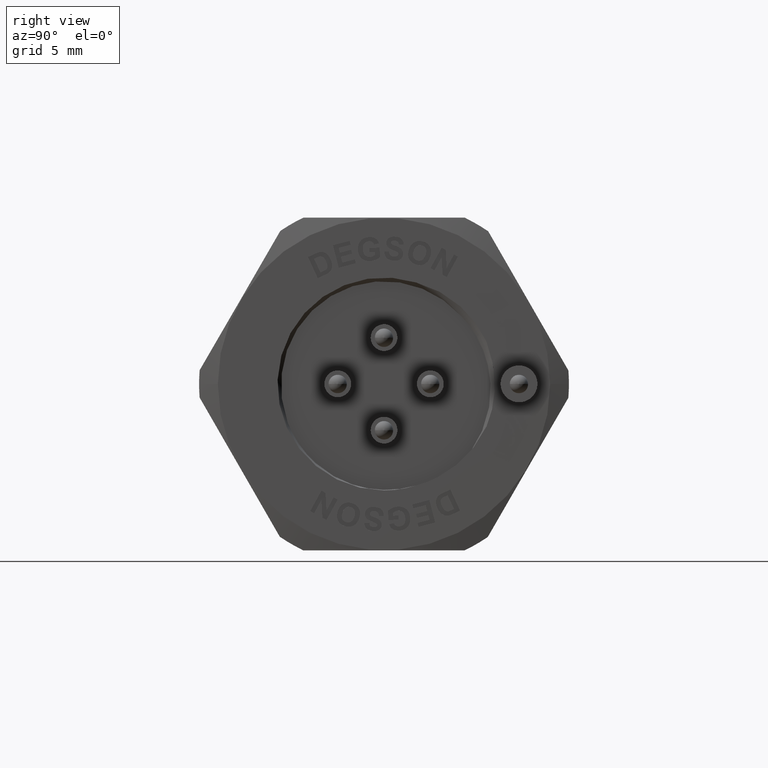
[diagram: clean part render]
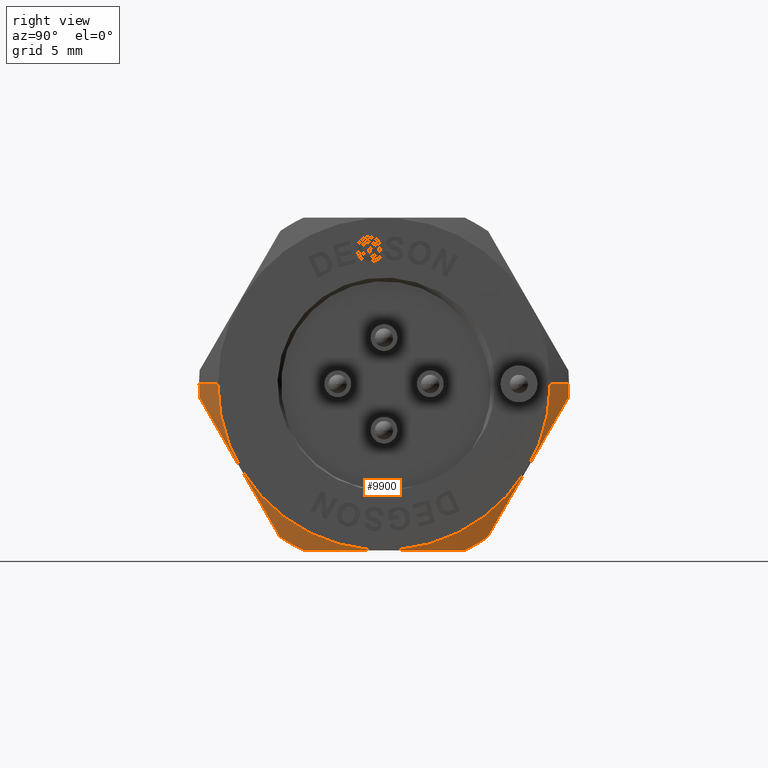
[diagram: same view with one face highlighted and labeled with its STEP entity id]
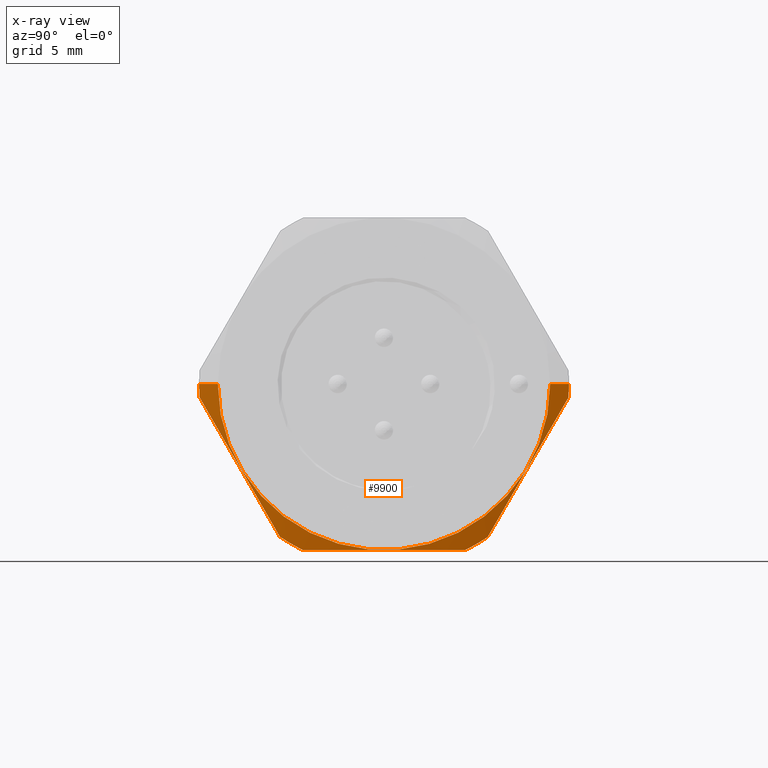
[diagram: x-ray of the same camera — body ghosted, the highlighted face saturated]
A machine part, right view. The second image highlights one B-rep face of the part: STEP entity #9900.
The next image is the same camera in x-ray: the body ghosted, the highlighted face saturated — about 0% of this face is hidden behind the body in this view.
In plain terms, the highlighted conical surface has half-angle 78 deg.
Its self-contained STEP definition (entity closure, byte-faithful):
#10=CARTESIAN_POINT('',(2.14E1,0.E0,0.E0));
#11=DIRECTION('',(-1.E0,0.E0,0.E0));
#12=DIRECTION('',(0.E0,1.E0,0.E0));
#13=AXIS2_PLACEMENT_3D('',#10,#11,#12);
#1069=CARTESIAN_POINT('',(2.118502262467E1,0.E0,0.E0));
#1070=DIRECTION('',(-1.E0,0.E0,0.E0));
#1071=DIRECTION('',(0.E0,-9.973085075786E-1,-7.331944292828E-2));
#1072=AXIS2_PLACEMENT_3D('',#1069,#1070,#1071);
#1074=DIRECTION('',(2.079116908136E-1,9.781476007347E-1,0.E0));
#1075=VECTOR('',#1074,1.033984065477E0);
#1076=CARTESIAN_POINT('',(2.118502262467E1,-1.E1,0.E0));
#1077=LINE('',#1076,#1075);
#1078=DIRECTION('',(-2.079116908136E-1,9.781476007347E-1,0.E0));
#1079=VECTOR('',#1078,1.033984065477E0);
#1080=CARTESIAN_POINT('',(2.14E1,8.988610967156E0,0.E0));
#1081=LINE('',#1080,#1079);
#1082=CARTESIAN_POINT('',(2.118502262467E1,0.E0,0.E0));
#1083=DIRECTION('',(-1.E0,0.E0,0.E0));
#1084=DIRECTION('',(0.E0,1.E0,0.E0));
#1085=AXIS2_PLACEMENT_3D('',#1082,#1083,#1084);
#1087=CARTESIAN_POINT('',(2.118502262467E1,9.972171017071E0,
-7.455234445081E-1));
#1088=CARTESIAN_POINT('',(2.122384499872E1,9.761919616012E0,-1.107971911159E0));
#1089=CARTESIAN_POINT('',(2.129208293242E1,9.342871605973E0,-1.830360955548E0));
#1090=CARTESIAN_POINT('',(2.136243284086E1,8.722930216734E0,-2.899066347334E0));
#1091=CARTESIAN_POINT('',(2.139910116322E1,8.098211892714E0,-3.976006607847E0));
#1092=CARTESIAN_POINT('',(2.139909460887E1,7.471641069404E0,-5.056140357313E0));
#1093=CARTESIAN_POINT('',(2.136243698534E1,6.847140906018E0,-6.132704534780E0));
#1094=CARTESIAN_POINT('',(2.129211243730E1,6.227314326506E0,-7.201212008222E0));
#1095=CARTESIAN_POINT('',(2.122386236769E1,5.808152453410E0,-7.923797339006E0));
#1096=CARTESIAN_POINT('',(2.118502262467E1,5.597806986747E0,-8.286407963595E0));
#1098=CARTESIAN_POINT('',(2.118502262467E1,0.E0,0.E0));
#1099=DIRECTION('',(-1.E0,0.E0,0.E0));
#1100=DIRECTION('',(0.E0,5.597806986747E-1,-8.286407963595E-1));
#1101=AXIS2_PLACEMENT_3D('',#1098,#1099,#1100);
#1103=CARTESIAN_POINT('',(2.118502262467E1,4.358898943541E0,-9.E0));
#1104=CARTESIAN_POINT('',(2.122385549601E1,3.939769484222E0,-9.E0));
#1105=CARTESIAN_POINT('',(2.129210069875E1,3.104489837882E0,-9.E0));
#1106=CARTESIAN_POINT('',(2.136243246315E1,1.869217151940E0,-9.E0));
#1107=CARTESIAN_POINT('',(2.139910071647E1,6.242588420057E-1,-9.E0));
#1108=CARTESIAN_POINT('',(2.139909512561E1,-6.244498973655E-1,-9.E0));
#1109=CARTESIAN_POINT('',(2.136243702477E1,-1.869105159878E0,-9.E0));
#1110=CARTESIAN_POINT('',(2.129209524885E1,-3.104585883833E0,-9.E0));
#1111=CARTESIAN_POINT('',(2.122385223929E1,-3.939804634471E0,-9.E0));
#1112=CARTESIAN_POINT('',(2.118502262467E1,-4.358898943541E0,-9.E0));
#1114=CARTESIAN_POINT('',(2.118502262467E1,0.E0,0.E0));
#1115=DIRECTION('',(-1.E0,0.E0,0.E0));
#1116=DIRECTION('',(0.E0,-4.358898943541E-1,-9.E-1));
#1117=AXIS2_PLACEMENT_3D('',#1114,#1115,#1116);
#1119=CARTESIAN_POINT('',(2.118502262467E1,-5.638446748229E0,
-8.258808525894E0));
#1120=CARTESIAN_POINT('',(2.122353792520E1,-5.846719437160E0,
-7.897214370786E0));
#1121=CARTESIAN_POINT('',(2.129123251506E1,-6.261869213681E0,
-7.176449044061E0));
#1122=CARTESIAN_POINT('',(2.136102398915E1,-6.876260174027E0,
-6.109769676001E0));
#1123=CARTESIAN_POINT('',(2.139738849243E1,-7.495355365572E0,
-5.034923022472E0));
#1124=CARTESIAN_POINT('',(2.139738246194E1,-8.116286912928E0,
-3.956888166346E0));
#1125=CARTESIAN_POINT('',(2.136102823910E1,-8.735195448973E0,
-2.882365576130E0));
#1126=CARTESIAN_POINT('',(2.129124705241E1,-9.349564330789E0,
-1.815724539874E0));
#1127=CARTESIAN_POINT('',(2.122354646418E1,-9.764766212043E0,
-1.094868751133E0));
#1128=CARTESIAN_POINT('',(2.118502262467E1,-9.973085075787E0,
-7.331944292832E-1));
#8007=CARTESIAN_POINT('',(2.14E1,-8.988610967156E0,0.E0));
#8008=CARTESIAN_POINT('',(2.14E1,8.988610967156E0,0.E0));
#8009=VERTEX_POINT('',#8007);
#8010=VERTEX_POINT('',#8008);
#8317=CARTESIAN_POINT('',(2.118502262467E1,1.E1,0.E0));
#8319=VERTEX_POINT('',#8317);
#8322=CARTESIAN_POINT('',(2.118502262467E1,-1.E1,0.E0));
#8324=VERTEX_POINT('',#8322);
#8334=CARTESIAN_POINT('',(2.118502262467E1,-4.358898943541E0,-9.E0));
#8336=VERTEX_POINT('',#8334);
#8337=VERTEX_POINT('',#1103);
#8340=CARTESIAN_POINT('',(2.118502262467E1,-9.973085075787E0,
-7.331944292828E-1));
#8341=VERTEX_POINT('',#8340);
#8342=CARTESIAN_POINT('',(2.118502262467E1,9.972171017070E0,
-7.455234445076E-1));
#8343=VERTEX_POINT('',#8342);
#8344=CARTESIAN_POINT('',(2.118502262467E1,5.597806986747E0,-8.286407963595E0));
#8345=VERTEX_POINT('',#8344);
#8346=CARTESIAN_POINT('',(2.118502262467E1,-5.638446748229E0,
-8.258808525895E0));
#8347=VERTEX_POINT('',#8346);
#9878=CARTESIAN_POINT('',(2.129251131234E1,0.E0,0.E0));
#9879=DIRECTION('',(-1.E0,0.E0,0.E0));
#9880=DIRECTION('',(0.E0,1.E0,0.E0));
#9881=AXIS2_PLACEMENT_3D('',#9878,#9879,#9880);
#9882=CONICAL_SURFACE('',#9881,9.494305483578E0,7.800000000031E1);
#9883=ORIENTED_EDGE('',*,*,#9867,.T.);
#9884=ORIENTED_EDGE('',*,*,#9733,.T.);
#9885=ORIENTED_EDGE('',*,*,#9289,.F.);
#9886=ORIENTED_EDGE('',*,*,#9730,.T.);
#9887=ORIENTED_EDGE('',*,*,#9761,.T.);
#9889=ORIENTED_EDGE('',*,*,#9888,.T.);
#9891=ORIENTED_EDGE('',*,*,#9890,.T.);
#9893=ORIENTED_EDGE('',*,*,#9892,.T.);
#9895=ORIENTED_EDGE('',*,*,#9894,.T.);
#9897=ORIENTED_EDGE('',*,*,#9896,.T.);
#9898=EDGE_LOOP('',(#9883,#9884,#9885,#9886,#9887,#9889,#9891,#9893,#9895,
#9897));
#9899=FACE_OUTER_BOUND('',#9898,.F.);
#9900=ADVANCED_FACE('',(#9899),#9882,.T.);
#14=CIRCLE('',#13,8.988610967156E0);
#1073=CIRCLE('',#1072,1.E1);
#1086=CIRCLE('',#1085,1.E1);
#1097=B_SPLINE_CURVE_WITH_KNOTS('',3,(#1087,#1088,#1089,#1090,#1091,#1092,#1093,
#1094,#1095,#1096),.UNSPECIFIED.,.F.,.F.,(4,1,1,1,1,1,1,4),(0.E0,
1.428571428571E-1,2.857142857143E-1,4.285714285714E-1,5.714285714286E-1,
7.142857142857E-1,8.571428571429E-1,1.E0),.UNSPECIFIED.);
#1102=CIRCLE('',#1101,1.E1);
#1113=B_SPLINE_CURVE_WITH_KNOTS('',3,(#1103,#1104,#1105,#1106,#1107,#1108,#1109,
#1110,#1111,#1112),.UNSPECIFIED.,.F.,.F.,(4,1,1,1,1,1,1,4),(0.E0,
1.428571428571E-1,2.857142857143E-1,4.285714285714E-1,5.714285714286E-1,
7.142857142857E-1,8.571428571429E-1,1.E0),.UNSPECIFIED.);
#1118=CIRCLE('',#1117,1.E1);
#1129=B_SPLINE_CURVE_WITH_KNOTS('',3,(#1119,#1120,#1121,#1122,#1123,#1124,#1125,
#1126,#1127,#1128),.UNSPECIFIED.,.F.,.F.,(4,1,1,1,1,1,1,4),(0.E0,
1.428571428571E-1,2.857142857143E-1,4.285714285714E-1,5.714285714286E-1,
7.142857142857E-1,8.571428571429E-1,1.E0),.UNSPECIFIED.);
#9289=EDGE_CURVE('',#8010,#8009,#14,.T.);
#9730=EDGE_CURVE('',#8010,#8319,#1081,.T.);
#9733=EDGE_CURVE('',#8324,#8009,#1077,.T.);
#9761=EDGE_CURVE('',#8319,#8343,#1086,.T.);
#9867=EDGE_CURVE('',#8341,#8324,#1073,.T.);
#9888=EDGE_CURVE('',#8343,#8345,#1097,.T.);
#9890=EDGE_CURVE('',#8345,#8337,#1102,.T.);
#9892=EDGE_CURVE('',#8337,#8336,#1113,.T.);
#9894=EDGE_CURVE('',#8336,#8347,#1118,.T.);
#9896=EDGE_CURVE('',#8347,#8341,#1129,.T.);